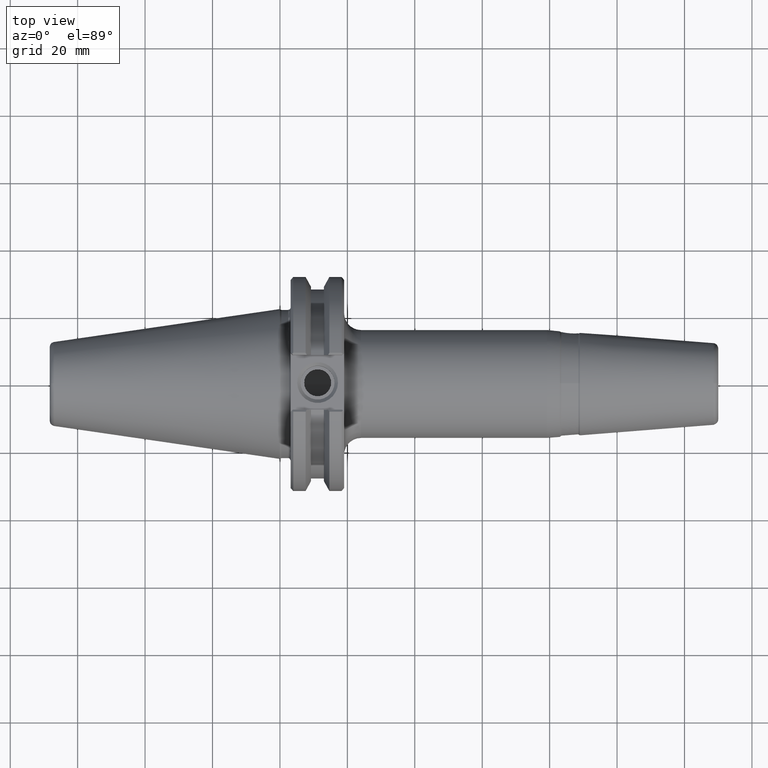
[diagram: clean part render]
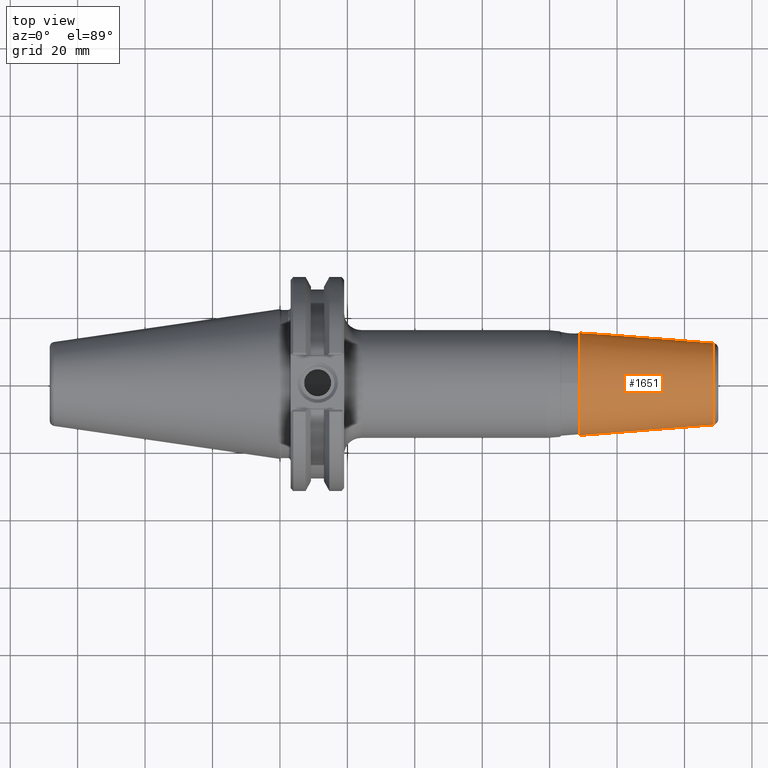
[diagram: same view with one face highlighted and labeled with its STEP entity id]
A machine part, top view. The second image highlights one B-rep face of the part: STEP entity #1651.
In plain terms, the highlighted conical surface has half-angle 4.5 deg.
Its self-contained STEP definition (entity closure, byte-faithful):
#67=CONICAL_SURFACE('',#1791,14.,0.0785398163397447);
#150=LINE('',#2744,#253);
#253=VECTOR('',#2053,14.);
#372=FACE_OUTER_BOUND('',#457,.T.);
#457=EDGE_LOOP('',(#1174,#1175,#1176,#1177,#1178,#1179,#1180,#1181));
#548=CIRCLE('',#1760,15.2284553993591);
#549=CIRCLE('',#1761,15.2284553993591);
#550=CIRCLE('',#1762,15.2284553993591);
#565=CIRCLE('',#1787,12.1105309073222);
#566=CIRCLE('',#1788,12.1105309073222);
#567=CIRCLE('',#1789,12.1105309073222);
#657=VERTEX_POINT('',#2487);
#658=VERTEX_POINT('',#2488);
#659=VERTEX_POINT('',#2490);
#686=VERTEX_POINT('',#2735);
#687=VERTEX_POINT('',#2737);
#688=VERTEX_POINT('',#2739);
#836=EDGE_CURVE('',#657,#658,#548,.T.);
#837=EDGE_CURVE('',#659,#657,#549,.T.);
#838=EDGE_CURVE('',#658,#659,#550,.T.);
#875=EDGE_CURVE('',#686,#687,#565,.T.);
#876=EDGE_CURVE('',#687,#688,#566,.T.);
#877=EDGE_CURVE('',#688,#686,#567,.T.);
#879=EDGE_CURVE('',#687,#659,#150,.T.);
#1174=ORIENTED_EDGE('',*,*,#877,.F.);
#1175=ORIENTED_EDGE('',*,*,#876,.F.);
#1176=ORIENTED_EDGE('',*,*,#879,.T.);
#1177=ORIENTED_EDGE('',*,*,#837,.T.);
#1178=ORIENTED_EDGE('',*,*,#836,.T.);
#1179=ORIENTED_EDGE('',*,*,#838,.T.);
#1180=ORIENTED_EDGE('',*,*,#879,.F.);
#1181=ORIENTED_EDGE('',*,*,#875,.F.);
#1651=ADVANCED_FACE('',(#372),#67,.T.);
#1760=AXIS2_PLACEMENT_3D('',#2489,#1978,#1979);
#1761=AXIS2_PLACEMENT_3D('',#2491,#1980,#1981);
#1762=AXIS2_PLACEMENT_3D('',#2492,#1982,#1983);
#1787=AXIS2_PLACEMENT_3D('',#2738,#2043,#2044);
#1788=AXIS2_PLACEMENT_3D('',#2740,#2045,#2046);
#1789=AXIS2_PLACEMENT_3D('',#2741,#2047,#2048);
#1791=AXIS2_PLACEMENT_3D('',#2743,#2051,#2052);
#1978=DIRECTION('center_axis',(1.,0.,0.));
#1979=DIRECTION('ref_axis',(0.,1.,0.));
#1980=DIRECTION('center_axis',(1.,0.,0.));
#1981=DIRECTION('ref_axis',(0.,1.,0.));
#1982=DIRECTION('center_axis',(1.,0.,0.));
#1983=DIRECTION('ref_axis',(0.,1.,0.));
#2043=DIRECTION('center_axis',(1.,0.,0.));
#2044=DIRECTION('ref_axis',(0.,-1.,0.));
#2045=DIRECTION('center_axis',(1.,0.,0.));
#2046=DIRECTION('ref_axis',(0.,-1.,0.));
#2047=DIRECTION('center_axis',(1.,0.,0.));
#2048=DIRECTION('ref_axis',(0.,-1.,0.));
#2051=DIRECTION('center_axis',(-1.,0.,0.));
#2052=DIRECTION('ref_axis',(0.,1.,0.));
#2053=DIRECTION('',(-0.996917333733128,-0.0784590957278448,-9.60846804471009E-18));
#2487=CARTESIAN_POINT('',(88.9785847141349,0.,-15.2284553993591));
#2488=CARTESIAN_POINT('',(88.9785847141349,1.86494791607833E-15,15.2284553993591));
#2489=CARTESIAN_POINT('Origin',(88.9785847141349,0.,0.));
#2490=CARTESIAN_POINT('',(88.9785847141349,-15.2284553993591,-1.86494791607833E-15));
#2491=CARTESIAN_POINT('Origin',(88.9785847141349,0.,0.));
#2492=CARTESIAN_POINT('Origin',(88.9785847141349,0.,0.));
#2735=CARTESIAN_POINT('',(128.595571661889,-1.48311229116272E-15,12.1105309073222));
#2737=CARTESIAN_POINT('',(128.595571661889,-12.1105309073222,-1.48311229116272E-15));
#2738=CARTESIAN_POINT('Origin',(128.595571661889,0.,-1.48311229116272E-15));
#2739=CARTESIAN_POINT('',(128.595571661889,12.1105309073222,0.));
#2740=CARTESIAN_POINT('Origin',(128.595571661889,0.,-1.48311229116272E-15));
#2741=CARTESIAN_POINT('Origin',(128.595571661889,0.,-1.48311229116272E-15));
#2743=CARTESIAN_POINT('Origin',(104.587590527651,0.,0.));
#2744=CARTESIAN_POINT('',(104.587590527651,-14.,-1.7145055188063E-15));